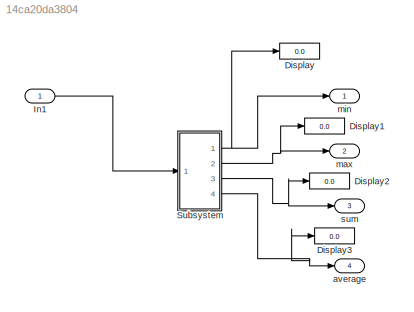
MODEL slx_14ca20da3804
KIND model
CONFIG AbsTol = auto
CONFIG EnableMultiTasking = off
CONFIG FixedStep = auto
CONFIG MaxStep = auto
CONFIG MinStep = auto
CONFIG RelTol = 1e-3
CONFIG SampleTimeConstraint = Unconstrained
CONFIG SolverName = VariableStepAuto
CONFIG StartTime = 0.0
CONFIG StopTime = 10.0
BLOCK [Display] Display
  Decimation = 1
  Ports = [1]
BLOCK [Display] Display1
  Decimation = 1
  Ports = [1]
BLOCK [Display] Display2
  Decimation = 1
  Ports = [1]
BLOCK [Display] Display3
  Decimation = 1
  Ports = [1]
BLOCK [Inport] In1
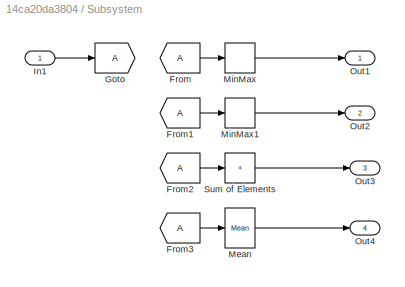
BLOCK [SubSystem] Subsystem
  Ports = [1, 4]
  RequestExecContextInheritance = off
BLOCK [From] Subsystem/From
BLOCK [From] Subsystem/From1
BLOCK [From] Subsystem/From2
BLOCK [From] Subsystem/From3
BLOCK [Goto] Subsystem/Goto
BLOCK [Inport] Subsystem/In1
BLOCK [Reference] Subsystem/Mean  REF=dspstat3/Mean
  Ports = [1, 1]
  SourceBlock = dspstat3/Mean
  SourceProductBaseCode = DS
  SourceType = Mean
  UserDataPersistent = on
BLOCK [MinMax] Subsystem/MinMax
  Ports = [1, 1]
BLOCK [MinMax] Subsystem/MinMax1
  Function = max
  Ports = [1, 1]
BLOCK [Outport] Subsystem/Out1
BLOCK [Outport] Subsystem/Out2
  Port = 2
BLOCK [Outport] Subsystem/Out3
  Port = 3
BLOCK [Outport] Subsystem/Out4
  Port = 4
BLOCK [Sum] Subsystem/Sum of Elements
  IconShape = rectangular
  Inputs = +
  Ports = [1, 1]
BLOCK [Outport] average
  Port = 4
BLOCK [Outport] max
  Port = 2
BLOCK [Outport] min
BLOCK [Outport] sum
  Port = 3
LINE In1:1 -> Subsystem:1
LINE Subsystem/From1:1 -> Subsystem/MinMax1:1
LINE Subsystem/From2:1 -> Subsystem/Sum of Elements:1
LINE Subsystem/From3:1 -> Subsystem/Mean:1
LINE Subsystem/From:1 -> Subsystem/MinMax:1
LINE Subsystem/In1:1 -> Subsystem/Goto:1
LINE Subsystem/Mean:1 -> Subsystem/Out4:1
LINE Subsystem/MinMax1:1 -> Subsystem/Out2:1
LINE Subsystem/MinMax:1 -> Subsystem/Out1:1
LINE Subsystem/Sum of Elements:1 -> Subsystem/Out3:1
NET Subsystem:1 -> Display:1, min:1
NET Subsystem:2 -> Display1:1, max:1
NET Subsystem:3 -> Display2:1, sum:1
NET Subsystem:4 -> Display3:1, average:1
note: NET lines group one-source signal fan-out (src -> all destinations, sorted); 1:1 wires keep LINE
